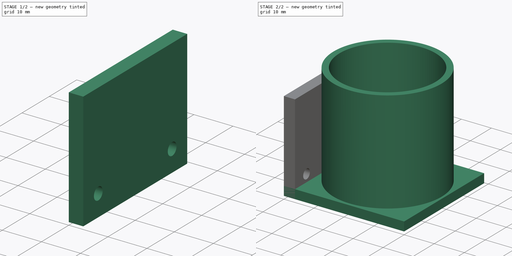
[diagram: build sequence overview — one tinted view per stage of 2, left to right]
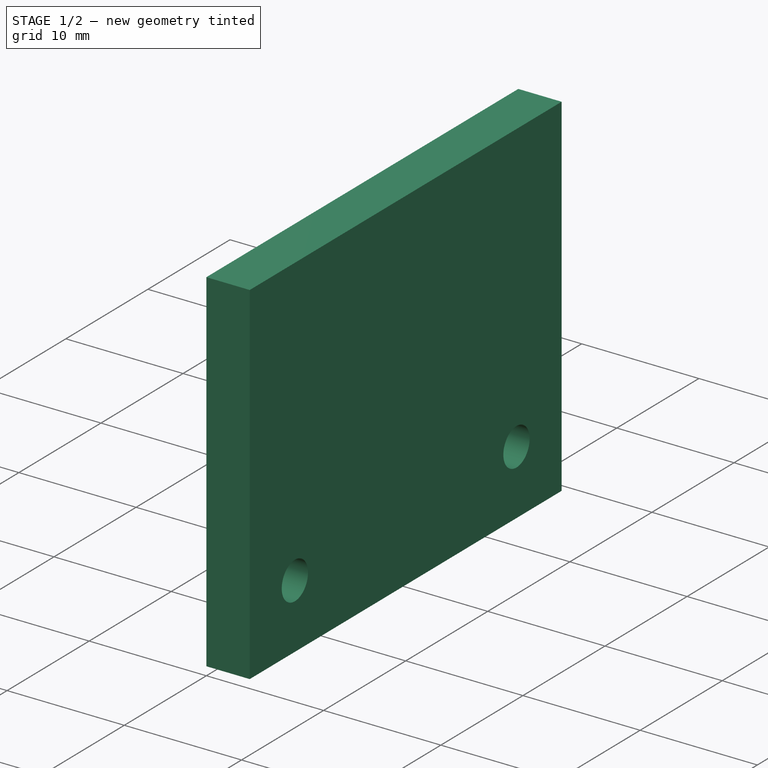
[diagram: stage 1 of 2 — iso view after this stage's code; geometry added in this stage tinted green]
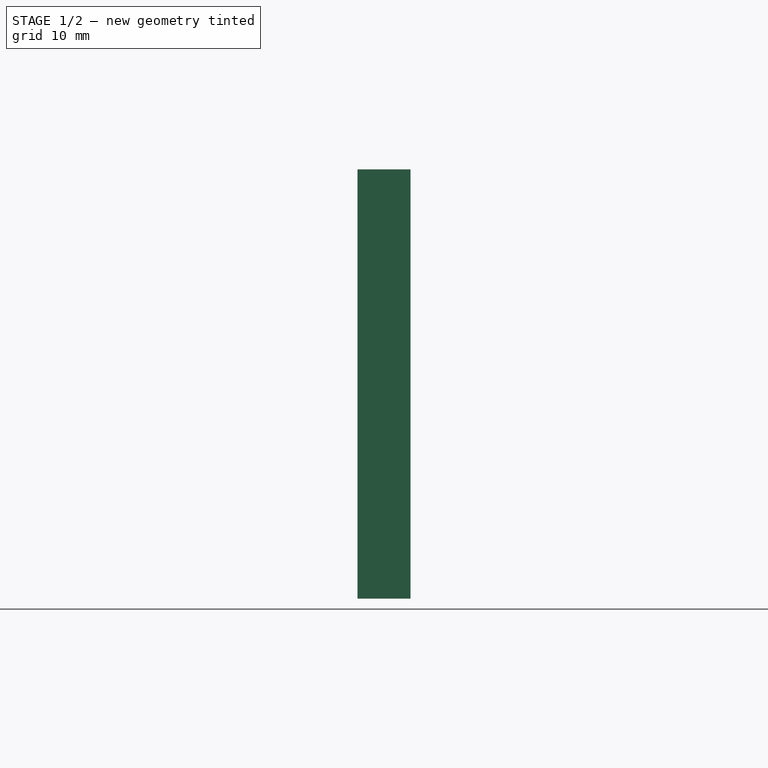
[diagram: stage 1 of 2 — front view after this stage's code; geometry added in this stage tinted green]
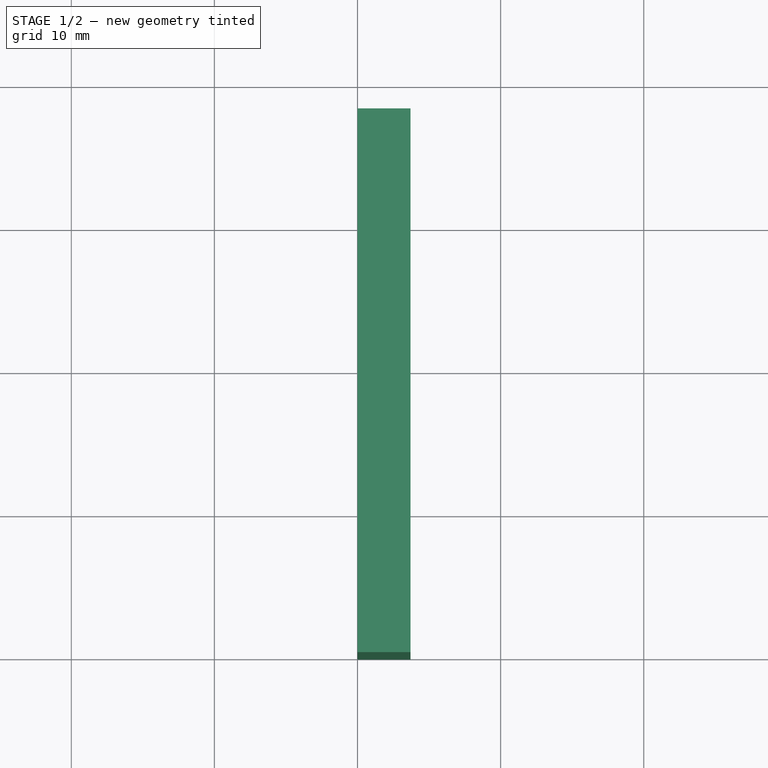
[diagram: stage 1 of 2 — top view after this stage's code; geometry added in this stage tinted green]
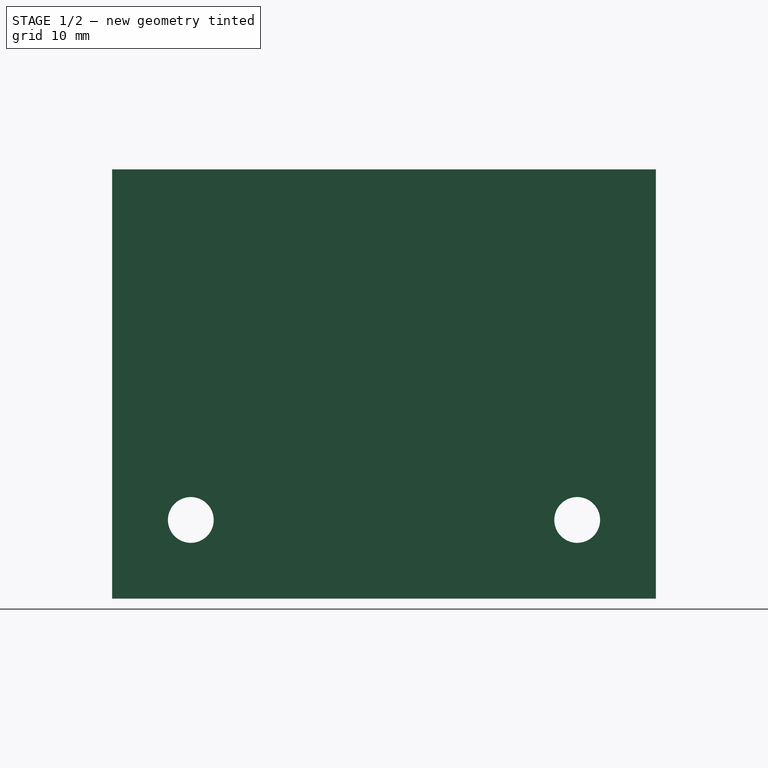
[diagram: stage 1 of 2 — right view after this stage's code; geometry added in this stage tinted green]
FCSTD DOCUMENT  (FreeCAD 0.18.4R)
Label: AngularSoporte_Motor
License: All rights reserved
LicenseURL: http://en.wikipedia.org/wiki/All_rights_reserved
objects: Sketcher::SketchObject×6, PartDesign::Pad×3, PartDesign::Body×3, PartDesign::Pocket×2, PartDesign::ShapeBinder×1, App::Part×1
note: 20 computed .brp shape members not serialized (recipe doc carries the construction recipe); baked Part::Feature solids carry a one-line shape summary decoded from their .brp

FEATURE [Sketcher::SketchObject] Sketch001
  MapMode = 5
  Support = -> [XY_Plane002]
  sketch-geometry (4):
    g0: LineSegment StartX=0 StartY=38 StartZ=0 EndX=3.7 EndY=38 EndZ=0
    g1: LineSegment StartX=3.7 StartY=38 StartZ=0 EndX=3.7 EndY=0 EndZ=0
    g2: LineSegment StartX=3.7 StartY=0 StartZ=0 EndX=0 EndY=0 EndZ=0
    g3: LineSegment StartX=0 StartY=0 StartZ=0 EndX=0 EndY=38 EndZ=0
  constraints (12):
    c: Coincident(g0,g1)
    c: Coincident(g1,g2)
    c: Coincident(g2,g3)
    c: Coincident(g3,g0)
    c: Horizontal(g0)
    c: Horizontal(g2)
    c: Vertical(g1)
    c: Vertical(g3)
    c: PointOnObject(g0,g-2)
    c: PointOnObject(g1,g-1)
    c: DistanceY(g3,g3) = 38
    c: DistanceX(g0,g0) = 3.7
FEATURE [PartDesign::Pad] Pad001
  Length = 30
  Length2 = 100
  Profile = -> Sketch001
  Type = 0
FEATURE [Sketcher::SketchObject] Sketch002
  MapMode = 5
  Placement = pos=(0,0,0) rot=(0.57735,-0.57735,-0.57735;2.0944rad)
  Support = -> [Pad001]
  sketch-geometry (2):
    g0: Circle CenterX=-5.5 CenterY=5.5 CenterZ=0 NormalX=0 NormalY=0 NormalZ=1 AngleXU=0 Radius=1.6
    g1: Circle CenterX=-32.5 CenterY=5.5 CenterZ=0 NormalX=0 NormalY=0 NormalZ=1 AngleXU=0 Radius=1.6
  constraints (6):
    c: Radius(g0) = 1.6
    c: Equal(g1,g0)
    c: DistanceX(g1,g0) = 27
    c: DistanceY(g0,g1) = 0
    c: DistanceX(g0,g-1) = 5.5
    c: DistanceY(g-1,g0) = 5.5
FEATURE [PartDesign::Pocket] Pocket
  BaseFeature = -> Pad001
  Length = 6
  Length2 = 100
  Profile = -> Sketch002
  Type = 4
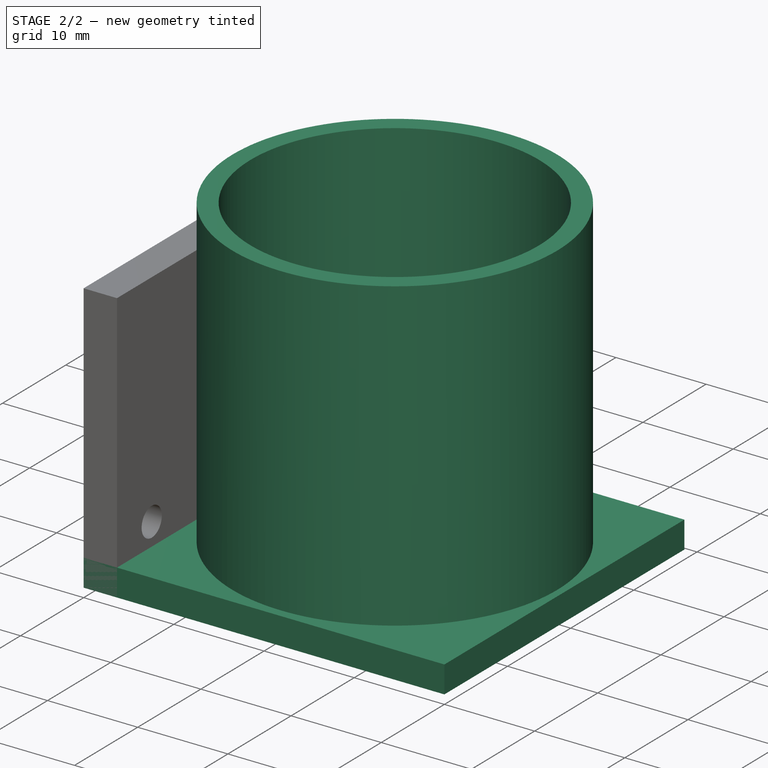
[diagram: stage 2 of 2 — iso view after this stage's code; geometry added in this stage tinted green]
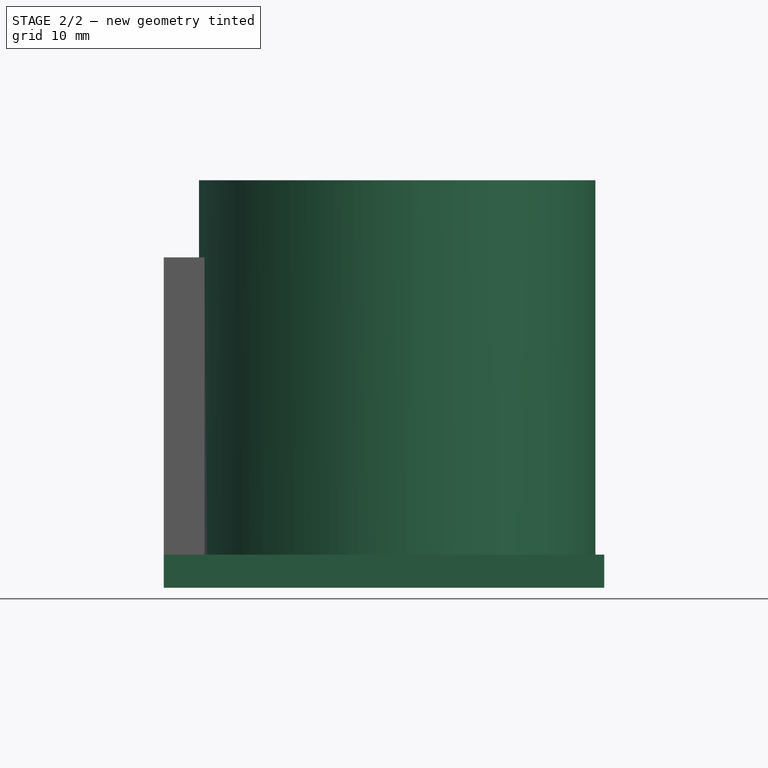
[diagram: stage 2 of 2 — front view after this stage's code; geometry added in this stage tinted green]
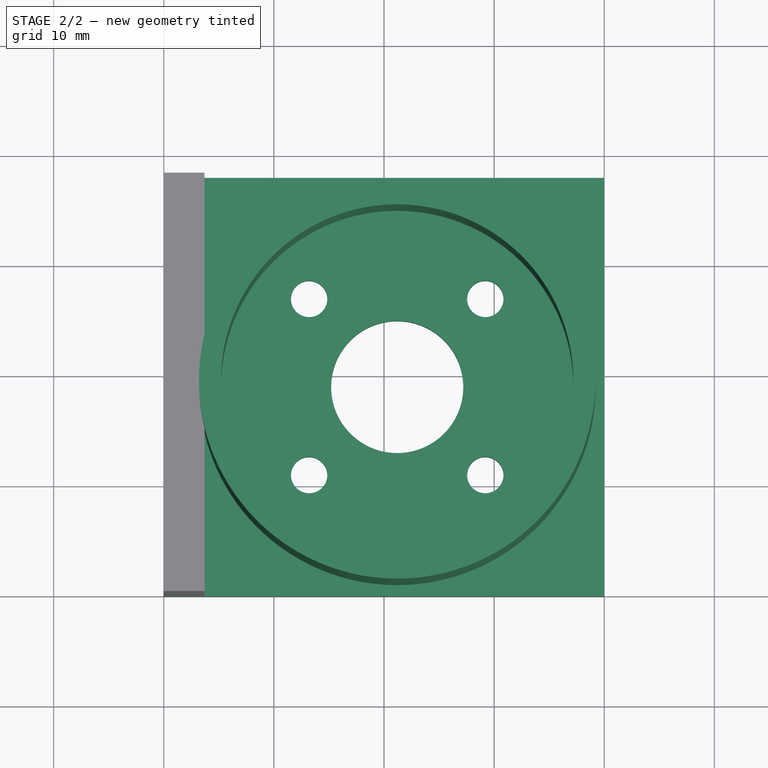
[diagram: stage 2 of 2 — top view after this stage's code; geometry added in this stage tinted green]
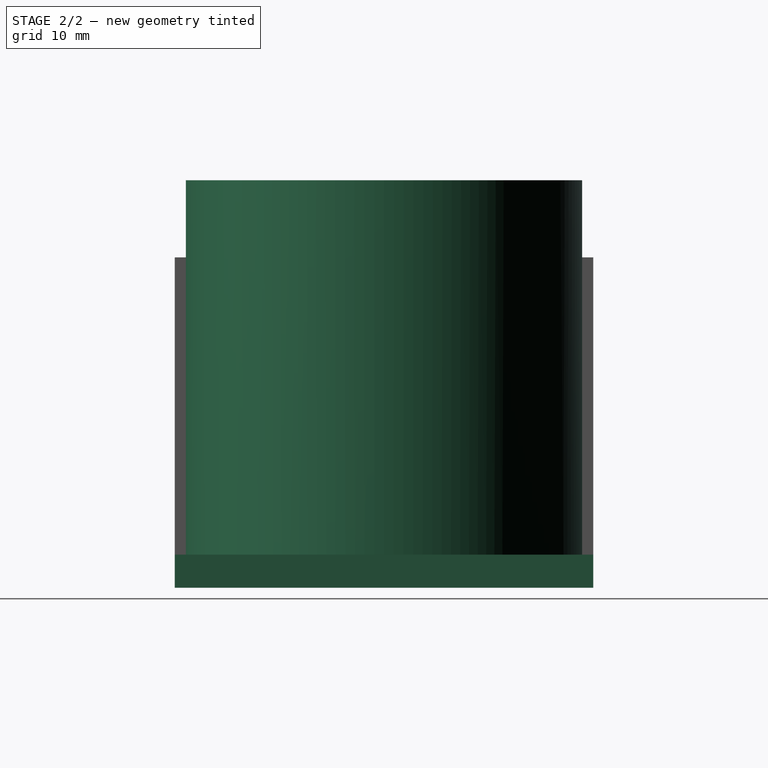
[diagram: stage 2 of 2 — right view after this stage's code; geometry added in this stage tinted green]
FEATURE [Sketcher::SketchObject] Sketch
  MapMode = 5
  Support = -> [XY_Plane001]
  sketch-geometry (17):
    g0: LineSegment StartX=0 StartY=0 StartZ=0 EndX=40 EndY=0 EndZ=0
    g1: LineSegment StartX=40 StartY=0 StartZ=0 EndX=40 EndY=38 EndZ=0
    g2: LineSegment StartX=40 StartY=38 StartZ=0 EndX=0 EndY=38 EndZ=0
    g3: LineSegment StartX=0 StartY=38 StartZ=0 EndX=0 EndY=0 EndZ=0
    g4: Circle CenterX=29.2 CenterY=27 CenterZ=0 NormalX=0 NormalY=0 NormalZ=1 AngleXU=0 Radius=1.65
    g5: Circle CenterX=13.2 CenterY=27 CenterZ=0 NormalX=0 NormalY=0 NormalZ=1 AngleXU=0 Radius=1.65
    g6: Circle CenterX=13.2 CenterY=11 CenterZ=0 NormalX=0 NormalY=0 NormalZ=1 AngleXU=0 Radius=1.65
    g7: Circle CenterX=29.2 CenterY=11 CenterZ=0 NormalX=0 NormalY=0 NormalZ=1 AngleXU=0 Radius=1.65
    g8: LineSegment [constr] StartX=4.2 StartY=38 StartZ=0 EndX=4.2 EndY=0 EndZ=0
    g9: Circle CenterX=21.2 CenterY=19 CenterZ=0 NormalX=0 NormalY=0 NormalZ=1 AngleXU=0 Radius=6
    g10: LineSegment [constr] StartX=13.2 StartY=27 StartZ=0 EndX=29.2 EndY=27 EndZ=0
    g11: LineSegment [constr] StartX=29.2 StartY=27 StartZ=0 EndX=29.2 EndY=11 EndZ=0
    g12: LineSegment [constr] StartX=29.2 StartY=11 StartZ=0 EndX=13.2 EndY=11 EndZ=0
    g13: LineSegment [constr] StartX=13.2 StartY=11 StartZ=0 EndX=13.2 EndY=27 EndZ=0
    g14: LineSegment [constr] StartX=13.2 StartY=27 StartZ=0 EndX=29.2 EndY=11 EndZ=0
    g15: LineSegment [constr] StartX=29.2 StartY=27 StartZ=0 EndX=13.2 EndY=11 EndZ=0
    g16: GeomPoint X=21.2 Y=19 Z=0
  constraints (42):
    c: Coincident(g0,g1)
    c: Coincident(g1,g2)
    c: Coincident(g2,g3)
    c: Coincident(g3,g0)
    c: Horizontal(g0)
    c: Horizontal(g2)
    c: Vertical(g3)
    c: Coincident(g0,g-1)
    c: DistanceY(g3,g3) = 38
    c: DistanceX(g2,g2) = 40
    c: Radius(g4) = 1.65
    c: Equal(g5,g4)
    c: Equal(g4,g6)
    c: Equal(g6,g7)
    c: PointOnObject(g8,g2)
    c: PointOnObject(g8,g0)
    c: Vertical(g8)
    c: Distance(g8,g2) = 4.2
    c: Radius(g9) = 6
    c: DistanceX(g6,g7) = 16
    c: Coincident(g10,g11)
    c: Coincident(g11,g12)
    c: Coincident(g12,g13)
    c: Coincident(g13,g10)
    c: Horizontal(g10)
    c: Horizontal(g12)
    c: Vertical(g11)
    c: Vertical(g13)
    c: Coincident(g14,g10)
    c: Coincident(g14,g11)
    c: Coincident(g15,g10)
    c: Coincident(g15,g12)
    c: PointOnObject(g16,g15)
    c: PointOnObject(g16,g14)
    c: Coincident(g16,g9)
    c: Coincident(g5,g10)
    c: Coincident(g4,g10)
    c: Coincident(g7,g11)
    c: Coincident(g6,g12)
    c: DistanceY(g11,g11) = 16
    c: DistanceX(g8,g9) = 17
    c: DistanceY(g9,g8) = 19
FEATURE [PartDesign::Pad] Pad
  Length = 3
  Length2 = 100
  Profile = -> Sketch
  Type = 0
FEATURE [PartDesign::Body] PadBody  label="CaraTornillos"
  Group = -> [Sketch,Pad]
  Origin = -> Origin001
  Tip = -> Pad
FEATURE [PartDesign::ShapeBinder] ReferencePad
  Placement = pos=(0,0,3) rot=(0,0,1;0rad)
  Support = -> [Pad]
  TraceSupport = false
FEATURE [Sketcher::SketchObject] Sketch003  label="SketchCilindro"
  MapMode = 5
  Placement = pos=(0,0,3) rot=(0,0,1;0rad)
  Support = -> [ReferencePad]
  sketch-geometry (2):
    g0: Circle CenterX=21.2 CenterY=19 CenterZ=0 NormalX=0 NormalY=0 NormalZ=1 AngleXU=0 Radius=16
    g1: Circle CenterX=21.2 CenterY=19 CenterZ=0 NormalX=0 NormalY=0 NormalZ=1 AngleXU=0 Radius=18
  constraints (5):
    c: Radius(g0) = 16
    c: Coincident(g1,g0)
    c: Radius(g1) = 18
    c: DistanceY(g-1,g0) = 19
    c: DistanceX(g-1,g0) = 21.2
FEATURE [Sketcher::SketchObject] CopySketch003
  Placement = pos=(0,0,3) rot=(0,0,1;0rad)
  sketch-geometry (2):
    g0: Circle CenterX=21.2 CenterY=19 CenterZ=0 NormalX=0 NormalY=0 NormalZ=1 AngleXU=0 Radius=16
    g1: Circle CenterX=21.2 CenterY=19 CenterZ=0 NormalX=0 NormalY=0 NormalZ=1 AngleXU=0 Radius=18
  constraints (5):
    c: Radius(g0) = 16
    c: Coincident(g1,g0)
    c: Radius(g1) = 18
    c: DistanceY(g-1,g0) = 19
    c: DistanceX(g-1,g0) = 21.2
FEATURE [PartDesign::Pad] Pad002
  BaseFeature = -> Pocket
  Length = 34
  Length2 = 100
  Profile = -> CopySketch003
  Type = 0
FEATURE [PartDesign::Body] PocketBody  label="Separador"
  Group = -> [Sketch001,Pad001,Sketch002,Pocket,CopySketch003,Pad002]
  Origin = -> Origin002
  Tip = -> Pad002
FEATURE [Sketcher::SketchObject] Sketch004  label="SketchBarrenosCilindro"
  MapMode = 5
  Placement = pos=(0,0,0) rot=(0.57735,0.57735,0.57735;2.0944rad)
  Support = -> [YZ_Plane003]
  sketch-geometry (2):
    g0: Circle CenterX=5.5 CenterY=5.5 CenterZ=0 NormalX=0 NormalY=0 NormalZ=1 AngleXU=0 Radius=1.6
    g1: Circle CenterX=32.5 CenterY=5.49615 CenterZ=0 NormalX=0 NormalY=0 NormalZ=1 AngleXU=0 Radius=1.6
  constraints (5):
    c: Radius(g0) = 1.6
    c: Radius(g1) = 1.6
    c: DistanceX(g-1,g0) = 5.5
    c: DistanceY(g-1,g0) = 5.5
    c: DistanceX(g0,g1) = 27
FEATURE [PartDesign::Pocket] Pocket001
  Length = 24
  Length2 = 100
  Midplane = true
  Profile = -> Sketch004
  Type = 0
FEATURE [PartDesign::Body] Body  label="CilindroCajaReduccion"
  Group = -> [ReferencePad,Sketch003,Sketch004,Pocket001]
  Origin = -> Origin003
  Tip = -> Pocket001
FEATURE [App::Part] Part  label="SoporteAngular_Motor"
  Group = -> [PadBody,PocketBody,Body]
  Origin = -> Origin
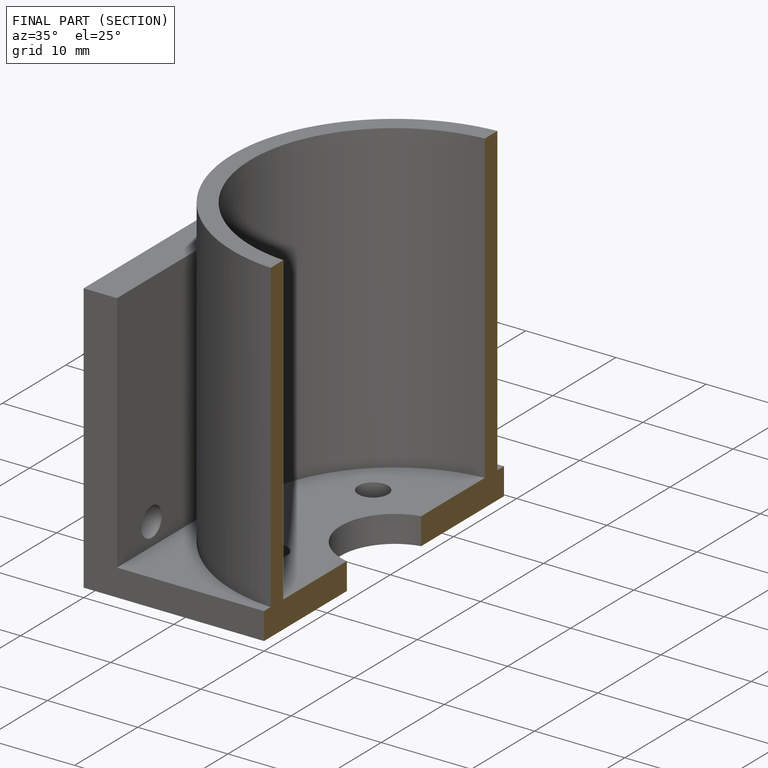
[diagram: finished part — half-section view (interior)]
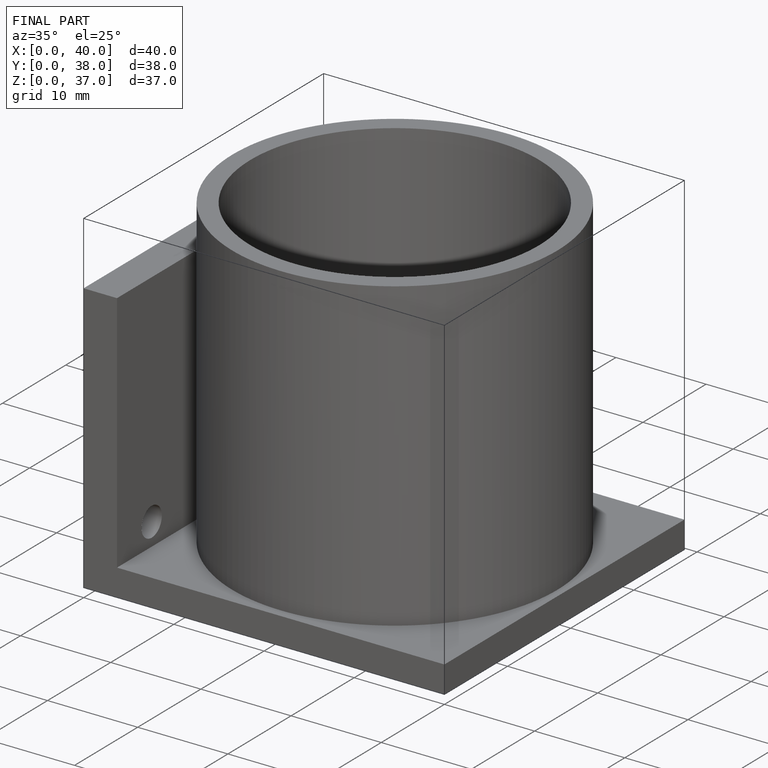
[diagram: finished part — iso view with bounding-box wireframe]
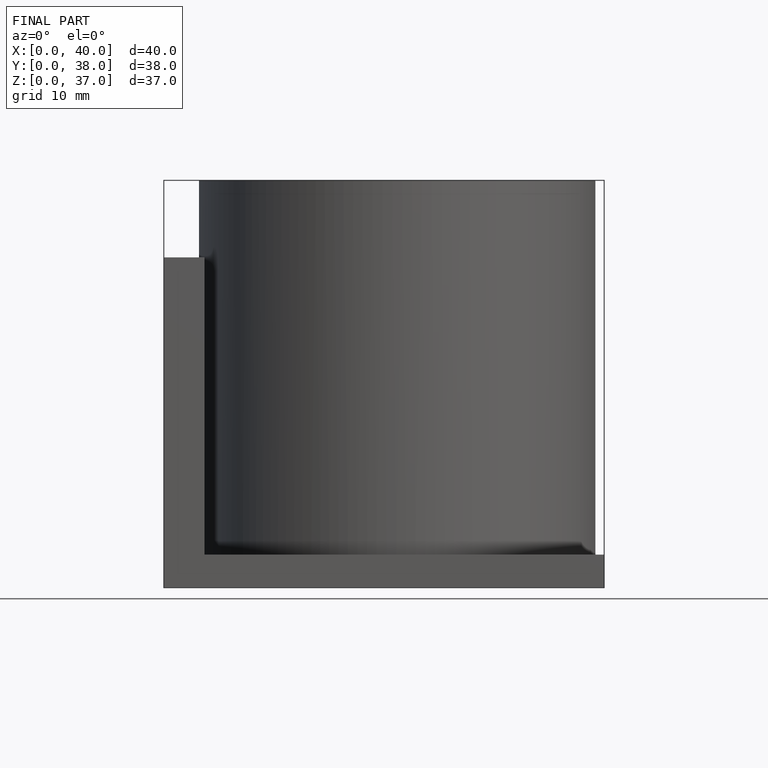
[diagram: finished part — front view with bounding-box wireframe]
